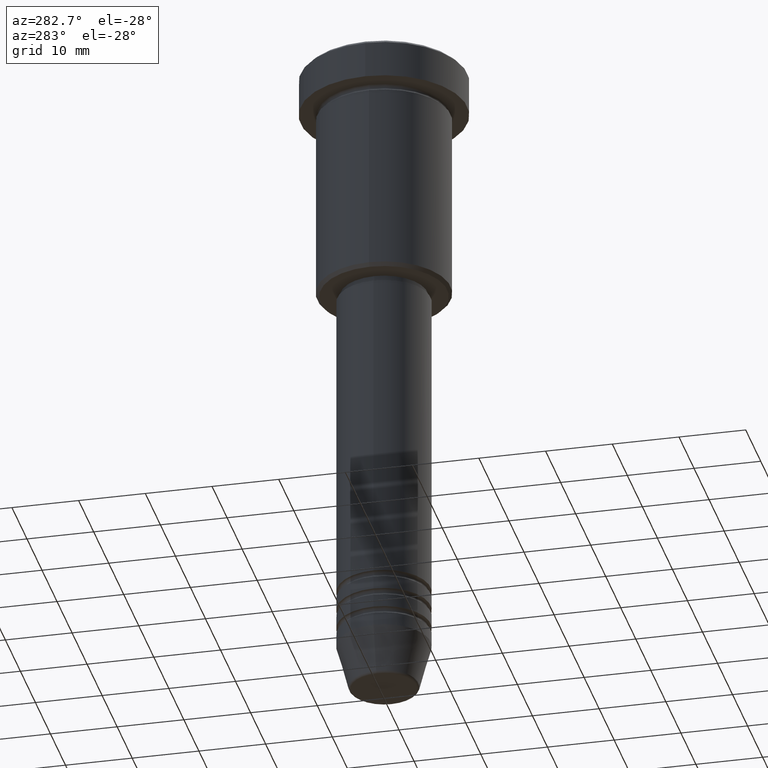
[diagram: clean part render]
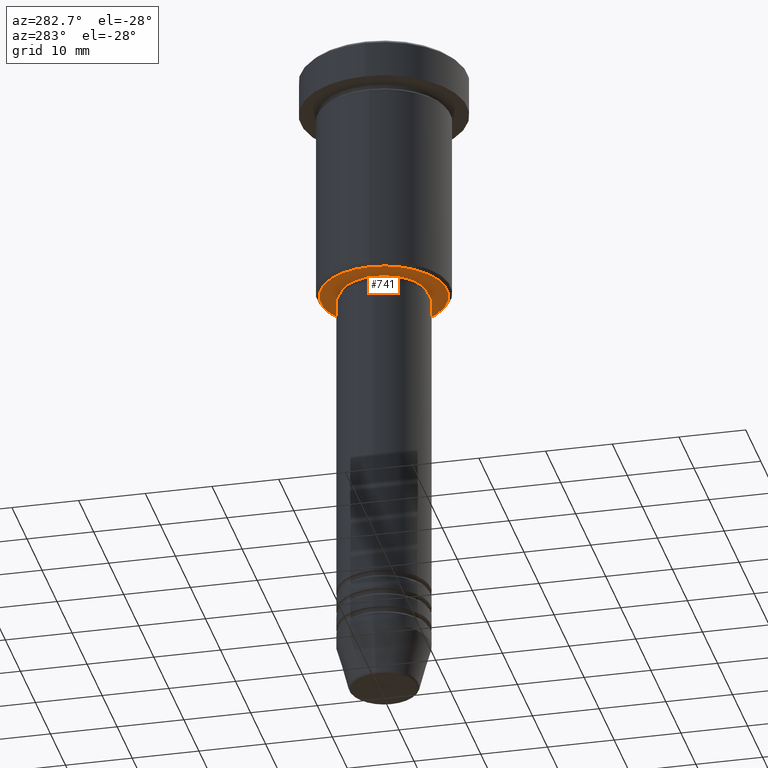
[diagram: same view with one face highlighted and labeled with its STEP entity id]
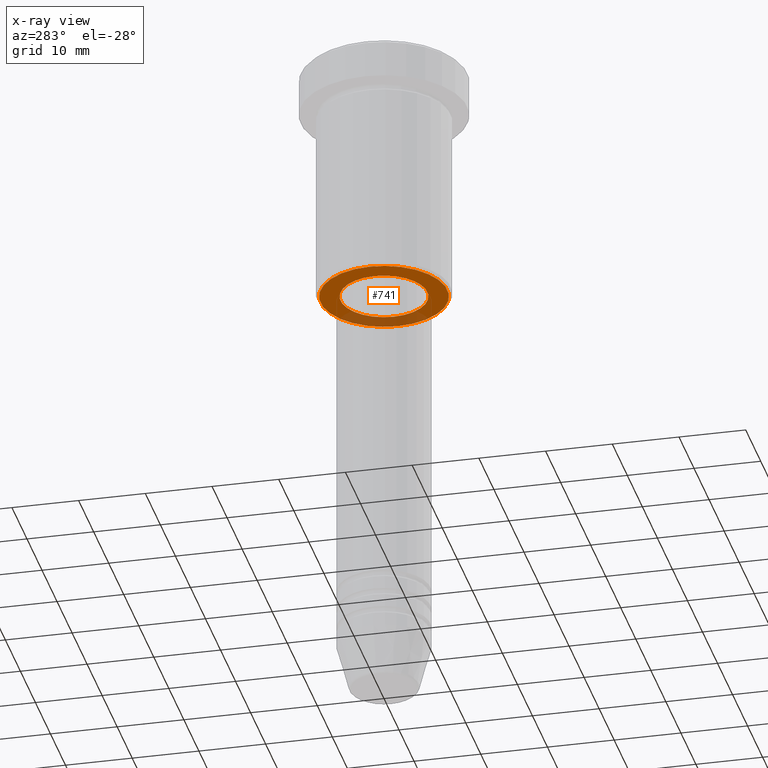
[diagram: x-ray of the same camera — body ghosted, the highlighted face saturated]
A machine part, auxiliary view. The second image highlights one B-rep face of the part: STEP entity #741.
The next image is the same camera in x-ray: the body ghosted, the highlighted face saturated — about 25% of this face is hidden behind the body in this view.
In plain terms, the highlighted planar face has unit normal (0, 0, -1).
Its self-contained STEP definition (entity closure, byte-faithful):
#5 = CIRCLE ( 'NONE', #144, 9.499999999999994671 ) ;
#19 = DIRECTION ( 'NONE',  ( -0.000000000000000000, -0.000000000000000000, 1.000000000000000000 ) ) ;
#21 = PLANE ( 'NONE',  #1169 ) ;
#29 = DIRECTION ( 'NONE',  ( 0.000000000000000000, 0.000000000000000000, -1.000000000000000000 ) ) ;
#109 = DIRECTION ( 'NONE',  ( -1.000000000000000000, 0.000000000000000000, 0.000000000000000000 ) ) ;
#121 = CARTESIAN_POINT ( 'NONE',  ( -6.500000000000000000, 7.960204194457795477E-16, -36.00000000000000711 ) ) ;
#126 = CARTESIAN_POINT ( 'NONE',  ( 9.499999999999994671, 0.000000000000000000, -36.00000000000000711 ) ) ;
#134 = ORIENTED_EDGE ( 'NONE', *, *, #1174, .T. ) ;
#144 = AXIS2_PLACEMENT_3D ( 'NONE', #763, #29, #1133 ) ;
#148 = EDGE_LOOP ( 'NONE', ( #134, #849 ) ) ;
#238 = ORIENTED_EDGE ( 'NONE', *, *, #240, .T. ) ;
#240 = EDGE_CURVE ( 'NONE', #1052, #872, #396, .T. ) ;
#318 = VERTEX_POINT ( 'NONE', #121 ) ;
#388 = DIRECTION ( 'NONE',  ( 0.000000000000000000, 0.000000000000000000, -1.000000000000000000 ) ) ;
#396 = CIRCLE ( 'NONE', #877, 9.499999999999994671 ) ;
#408 = CARTESIAN_POINT ( 'NONE',  ( 0.000000000000000000, 0.000000000000000000, -36.00000000000000711 ) ) ;
#498 = CIRCLE ( 'NONE', #705, 6.500000000000000000 ) ;
#508 = VERTEX_POINT ( 'NONE', #622 ) ;
#622 = CARTESIAN_POINT ( 'NONE',  ( 6.500000000000000000, 0.000000000000000000, -36.00000000000000711 ) ) ;
#630 = AXIS2_PLACEMENT_3D ( 'NONE', #812, #19, #1097 ) ;
#633 = FACE_OUTER_BOUND ( 'NONE', #956, .T. ) ;
#640 = DIRECTION ( 'NONE',  ( -1.000000000000000000, 0.000000000000000000, -0.000000000000000000 ) ) ;
#705 = AXIS2_PLACEMENT_3D ( 'NONE', #408, #749, #947 ) ;
#741 = ADVANCED_FACE ( 'NONE', ( #633, #822 ), #21, .T. ) ;
#749 = DIRECTION ( 'NONE',  ( -0.000000000000000000, -0.000000000000000000, 1.000000000000000000 ) ) ;
#763 = CARTESIAN_POINT ( 'NONE',  ( 0.000000000000000000, 0.000000000000000000, -36.00000000000000711 ) ) ;
#797 = CARTESIAN_POINT ( 'NONE',  ( -9.499999999999994671, 1.194030629168669075E-15, -36.00000000000000711 ) ) ;
#812 = CARTESIAN_POINT ( 'NONE',  ( 0.000000000000000000, 0.000000000000000000, -36.00000000000000711 ) ) ;
#822 = FACE_BOUND ( 'NONE', #148, .T. ) ;
#849 = ORIENTED_EDGE ( 'NONE', *, *, #876, .T. ) ;
#851 = EDGE_CURVE ( 'NONE', #872, #1052, #5, .T. ) ;
#872 = VERTEX_POINT ( 'NONE', #126 ) ;
#876 = EDGE_CURVE ( 'NONE', #318, #508, #498, .T. ) ;
#877 = AXIS2_PLACEMENT_3D ( 'NONE', #1117, #388, #109 ) ;
#925 = DIRECTION ( 'NONE',  ( 0.000000000000000000, 0.000000000000000000, -1.000000000000000000 ) ) ;
#938 = CIRCLE ( 'NONE', #630, 6.500000000000000000 ) ;
#947 = DIRECTION ( 'NONE',  ( 1.000000000000000000, 0.000000000000000000, 0.000000000000000000 ) ) ;
#956 = EDGE_LOOP ( 'NONE', ( #1027, #238 ) ) ;
#999 = CARTESIAN_POINT ( 'NONE',  ( 0.000000000000000000, 10.00000000000000000, -36.00000000000000711 ) ) ;
#1027 = ORIENTED_EDGE ( 'NONE', *, *, #851, .T. ) ;
#1052 = VERTEX_POINT ( 'NONE', #797 ) ;
#1097 = DIRECTION ( 'NONE',  ( 1.000000000000000000, 0.000000000000000000, 0.000000000000000000 ) ) ;
#1117 = CARTESIAN_POINT ( 'NONE',  ( 0.000000000000000000, 0.000000000000000000, -36.00000000000000711 ) ) ;
#1133 = DIRECTION ( 'NONE',  ( -1.000000000000000000, 0.000000000000000000, 0.000000000000000000 ) ) ;
#1169 = AXIS2_PLACEMENT_3D ( 'NONE', #999, #925, #640 ) ;
#1174 = EDGE_CURVE ( 'NONE', #508, #318, #938, .T. ) ;